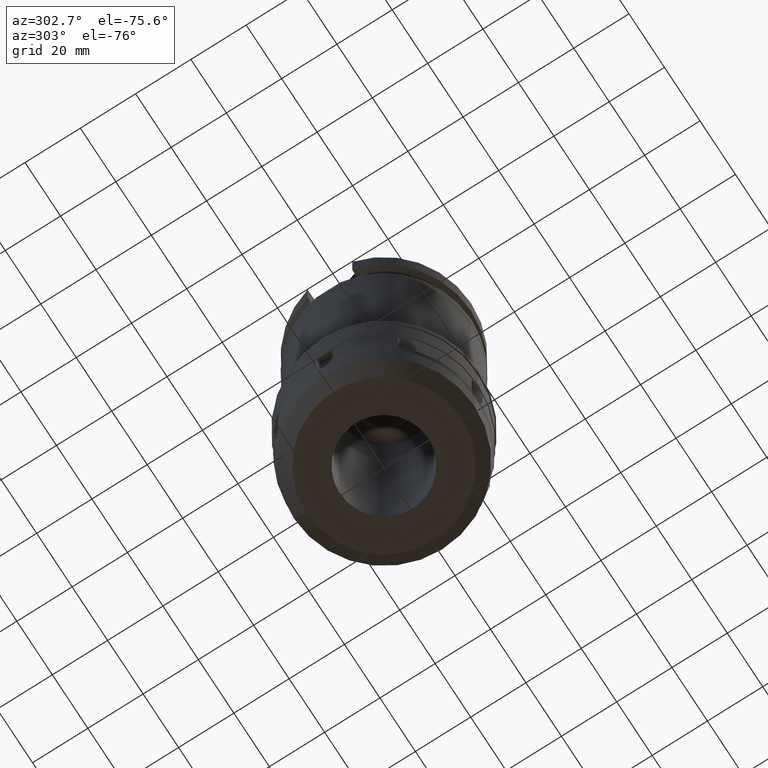
[diagram: clean part render]
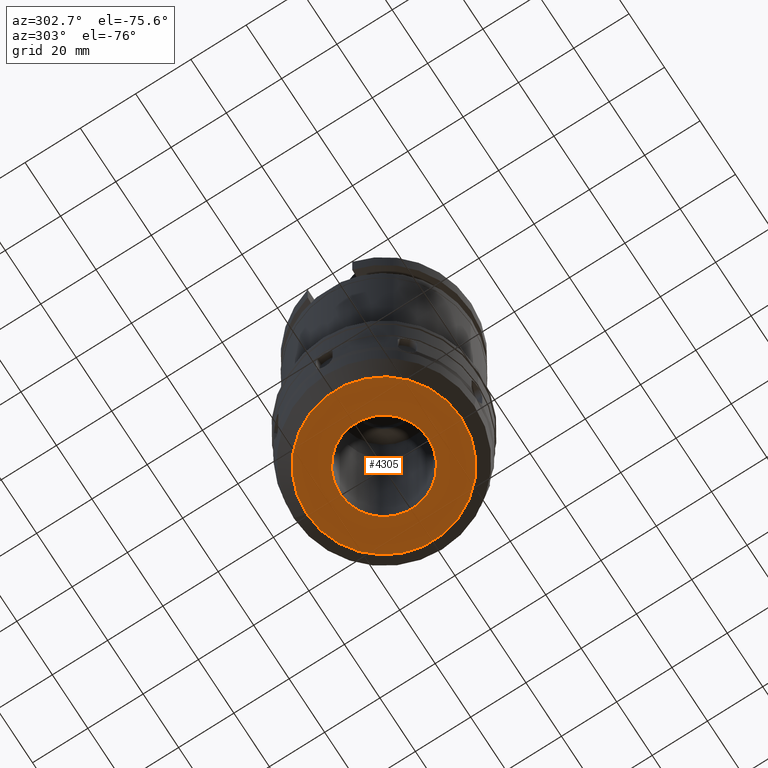
[diagram: same view with one face highlighted and labeled with its STEP entity id]
A machine part, auxiliary view. The second image highlights one B-rep face of the part: STEP entity #4305.
In plain terms, the highlighted planar face has unit normal (0, 0, -1).
Its self-contained STEP definition (entity closure, byte-faithful):
#2150=CARTESIAN_POINT('',(0.E0,0.E0,-1.35E2));
#2151=DIRECTION('',(0.E0,0.E0,1.E0));
#2152=DIRECTION('',(0.E0,-1.E0,0.E0));
#2153=AXIS2_PLACEMENT_3D('',#2150,#2151,#2152);
#2158=CARTESIAN_POINT('',(0.E0,0.E0,-1.35E2));
#2159=DIRECTION('',(0.E0,0.E0,1.E0));
#2160=DIRECTION('',(0.E0,1.E0,0.E0));
#2161=AXIS2_PLACEMENT_3D('',#2158,#2159,#2160);
#2166=CARTESIAN_POINT('',(0.E0,2.148275415064E-14,-1.35E2));
#2167=DIRECTION('',(0.E0,0.E0,-1.E0));
#2168=DIRECTION('',(0.E0,-1.E0,0.E0));
#2169=AXIS2_PLACEMENT_3D('',#2166,#2167,#2168);
#2174=CARTESIAN_POINT('',(0.E0,2.148275415064E-14,-1.35E2));
#2175=DIRECTION('',(0.E0,0.E0,-1.E0));
#2176=DIRECTION('',(0.E0,1.E0,0.E0));
#2177=AXIS2_PLACEMENT_3D('',#2174,#2175,#2176);
#2534=CARTESIAN_POINT('',(0.E0,1.6E1,-1.35E2));
#2535=VERTEX_POINT('',#2534);
#2536=CARTESIAN_POINT('',(0.E0,-1.6E1,-1.35E2));
#2537=VERTEX_POINT('',#2536);
#2538=CARTESIAN_POINT('',(0.E0,-2.8E1,-1.35E2));
#2539=CARTESIAN_POINT('',(0.E0,2.8E1,-1.35E2));
#2540=VERTEX_POINT('',#2538);
#2541=VERTEX_POINT('',#2539);
#4290=CARTESIAN_POINT('',(0.E0,0.E0,-1.35E2));
#4291=DIRECTION('',(0.E0,0.E0,-1.E0));
#4292=DIRECTION('',(0.E0,-1.E0,0.E0));
#4293=AXIS2_PLACEMENT_3D('',#4290,#4291,#4292);
#4294=PLANE('',#4293);
#4295=ORIENTED_EDGE('',*,*,#4283,.T.);
#4296=ORIENTED_EDGE('',*,*,#4272,.T.);
#4297=EDGE_LOOP('',(#4295,#4296));
#4298=FACE_OUTER_BOUND('',#4297,.F.);
#4300=ORIENTED_EDGE('',*,*,#4299,.T.);
#4302=ORIENTED_EDGE('',*,*,#4301,.T.);
#4303=EDGE_LOOP('',(#4300,#4302));
#4304=FACE_BOUND('',#4303,.F.);
#2154=CIRCLE('',#2153,2.8E1);
#2162=CIRCLE('',#2161,2.8E1);
#2170=CIRCLE('',#2169,1.6E1);
#2178=CIRCLE('',#2177,1.6E1);
#4272=EDGE_CURVE('',#2541,#2540,#2162,.T.);
#4283=EDGE_CURVE('',#2540,#2541,#2154,.T.);
#4299=EDGE_CURVE('',#2537,#2535,#2170,.T.);
#4301=EDGE_CURVE('',#2535,#2537,#2178,.T.);
#4305=ADVANCED_FACE('',(#4298,#4304),#4294,.T.);